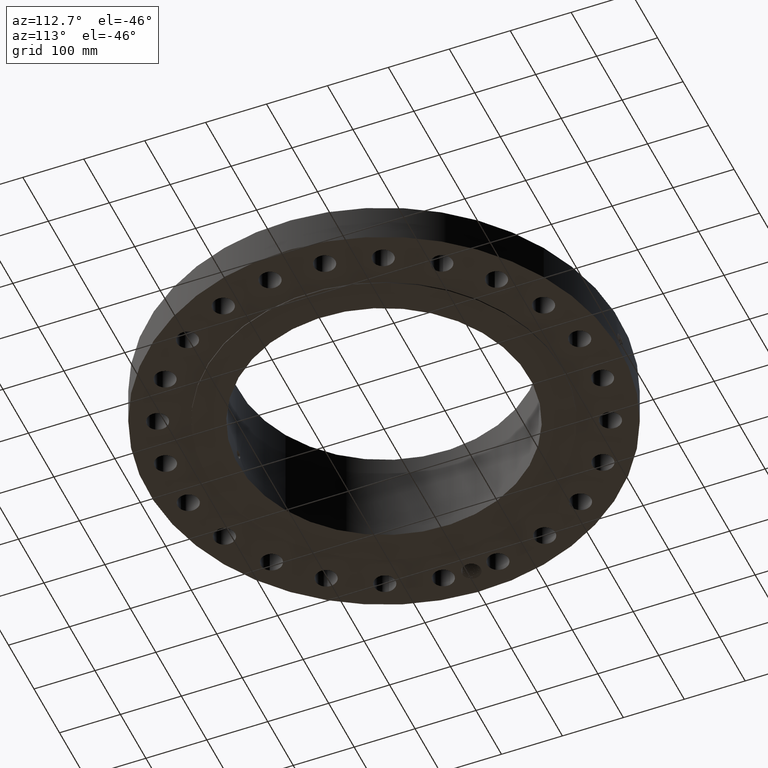
[diagram: clean part render]
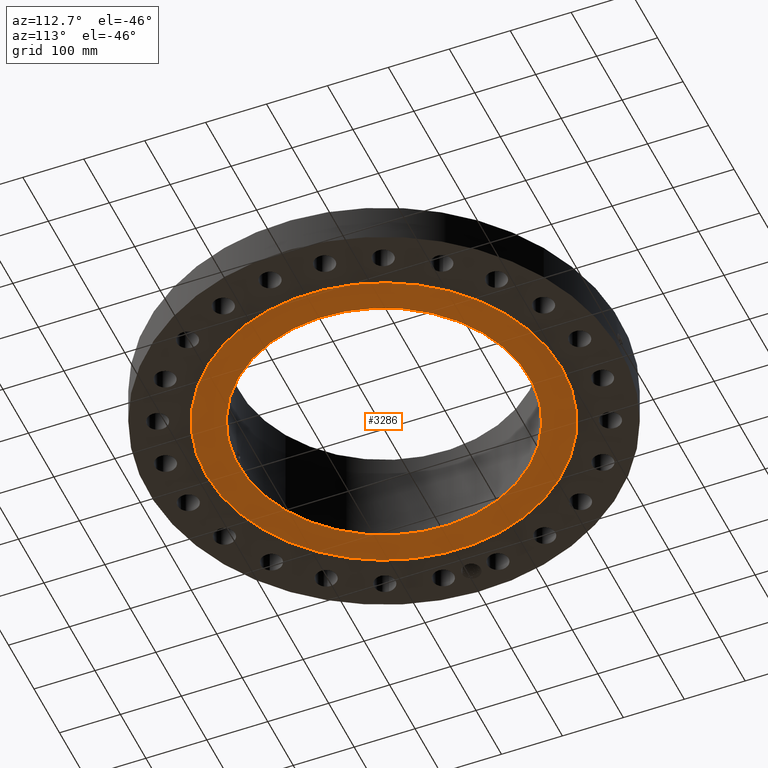
[diagram: same view with one face highlighted and labeled with its STEP entity id]
A machine part, auxiliary view. The second image highlights one B-rep face of the part: STEP entity #3286.
In plain terms, the highlighted planar face has unit normal (0, 0, -1).
Its self-contained STEP definition (entity closure, byte-faithful):
#1744=AXIS2_PLACEMENT_3D('Circle Axis2P3D',#1742,#1743,$) ;
#1770=AXIS2_PLACEMENT_3D('Circle Axis2P3D',#1768,#1769,$) ;
#3262=AXIS2_PLACEMENT_3D('Plane Axis2P3D',#3259,#3260,#3261) ;
#3270=AXIS2_PLACEMENT_3D('Circle Axis2P3D',#3268,#3269,$) ;
#3279=AXIS2_PLACEMENT_3D('Circle Axis2P3D',#3277,#3278,$) ;
#1742=CARTESIAN_POINT('Axis2P3D Location',(0.,0.,1.1189649382E-015)) ;
#1746=CARTESIAN_POINT('Vertex',(5.51339369397,10.0921994618,5.59482469102E-016)) ;
#1748=CARTESIAN_POINT('Vertex',(-5.51339369397,-10.0921994618,5.59482469102E-016)) ;
#1768=CARTESIAN_POINT('Axis2P3D Location',(0.,0.,1.1189649382E-015)) ;
#3259=CARTESIAN_POINT('Axis2P3D Location',(0.,9.40600000004,0.)) ;
#3268=CARTESIAN_POINT('Axis2P3D Location',(0.,0.,0.)) ;
#3272=CARTESIAN_POINT('Vertex',(4.50947661613,8.25454157717,-6.04241066631E-014)) ;
#3274=CARTESIAN_POINT('Vertex',(-4.50947661613,-8.25454157717,-6.04241066631E-014)) ;
#3277=CARTESIAN_POINT('Axis2P3D Location',(0.,0.,0.)) ;
#1743=DIRECTION('Axis2P3D Direction',(0.,0.,-0.0393700787402)) ;
#1769=DIRECTION('Axis2P3D Direction',(0.,0.,-0.0393700787402)) ;
#3260=DIRECTION('Axis2P3D Direction',(0.,0.,-0.0393700787402)) ;
#3261=DIRECTION('Axis2P3D XDirection',(0.0393700787402,0.,0.)) ;
#3269=DIRECTION('Axis2P3D Direction',(0.,0.,-0.0393700787402)) ;
#3278=DIRECTION('Axis2P3D Direction',(0.,0.,-0.0393700787402)) ;
#3265=ORIENTED_EDGE('',*,*,#1772,.T.) ;
#3266=ORIENTED_EDGE('',*,*,#1750,.T.) ;
#3283=ORIENTED_EDGE('',*,*,#3276,.F.) ;
#3284=ORIENTED_EDGE('',*,*,#3281,.F.) ;
#3285=FACE_BOUND('',#3282,.T.) ;
#3286=ADVANCED_FACE('PartBody',(#3267,#3285),#3263,.T.) ;
#1745=CIRCLE('generated circle',#1744,11.5) ;
#1771=CIRCLE('generated circle',#1770,11.5) ;
#3271=CIRCLE('generated circle',#3270,9.40600000004) ;
#3280=CIRCLE('generated circle',#3279,9.40600000004) ;
#1750=EDGE_CURVE('',#1747,#1749,#1745,.T.) ;
#1772=EDGE_CURVE('',#1749,#1747,#1771,.T.) ;
#3276=EDGE_CURVE('',#3273,#3275,#3271,.T.) ;
#3281=EDGE_CURVE('',#3275,#3273,#3280,.T.) ;
#3264=EDGE_LOOP('',(#3265,#3266)) ;
#3282=EDGE_LOOP('',(#3283,#3284)) ;
#3267=FACE_OUTER_BOUND('',#3264,.T.) ;
#3263=PLANE('',#3262) ;
#1747=VERTEX_POINT('',#1746) ;
#1749=VERTEX_POINT('',#1748) ;
#3273=VERTEX_POINT('',#3272) ;
#3275=VERTEX_POINT('',#3274) ;